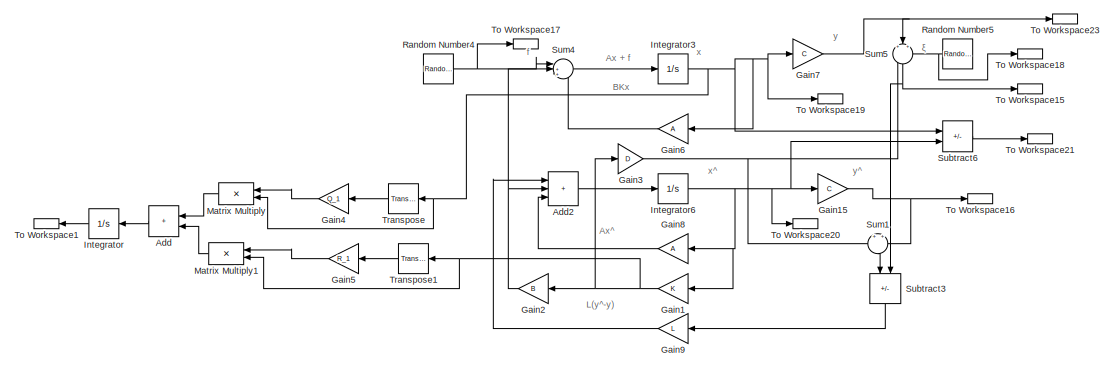
[diagram: root canvas - part 1/4, top center region]
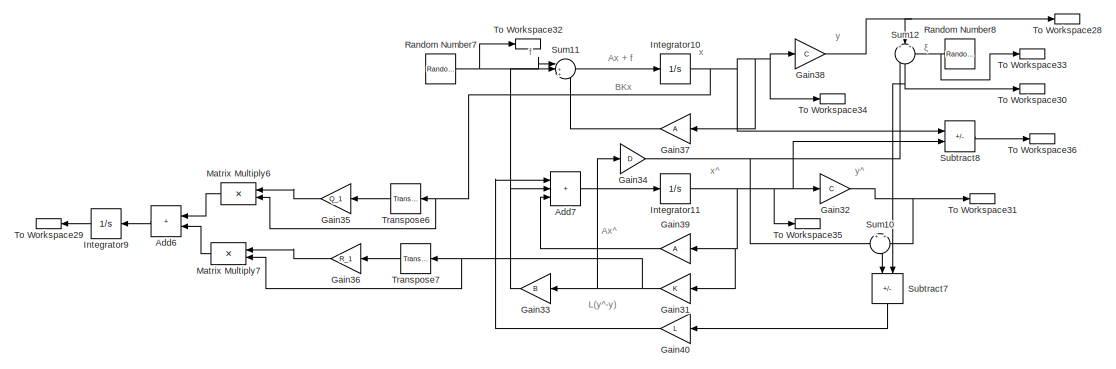
[diagram: root canvas - part 2/4, middle right region]
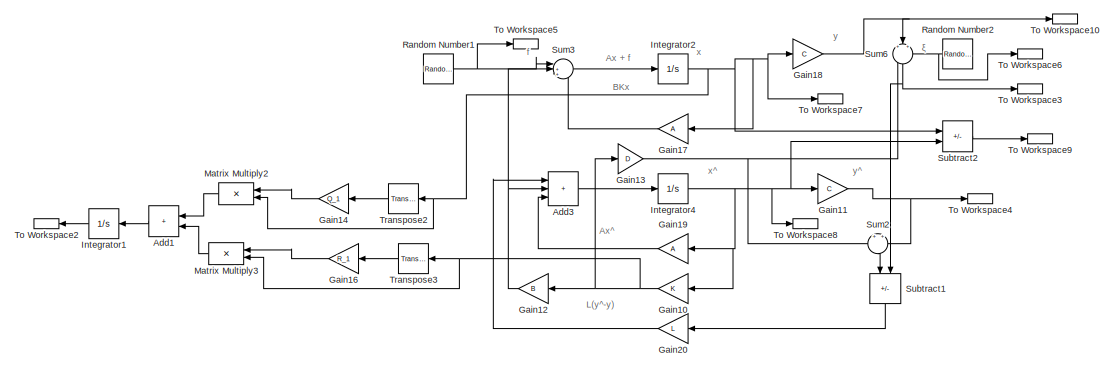
[diagram: root canvas - part 3/4, middle left region]
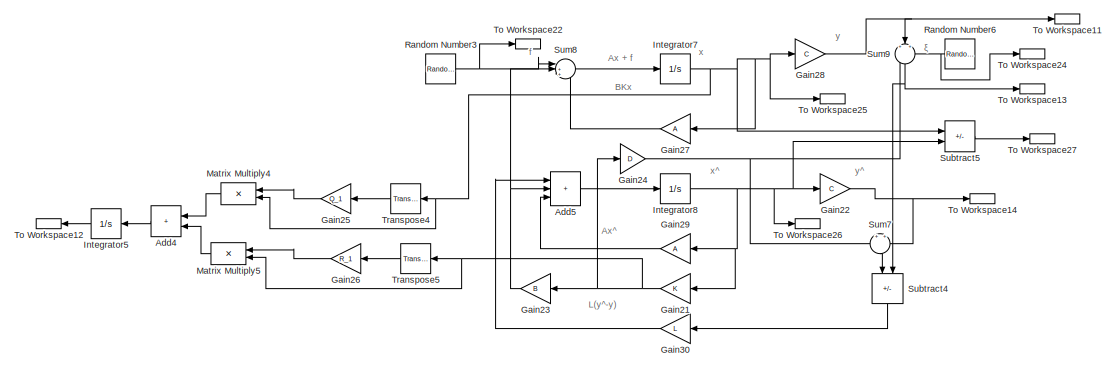
[diagram: root canvas - part 4/4, bottom right region]
MODEL slx_93a18c99cc7f
KIND model
CONFIG AbsTol = auto
CONFIG EnableMultiTasking = off
CONFIG FixedStep = auto
CONFIG MaxStep = auto
CONFIG MinStep = auto
CONFIG RelTol = 1e-3
CONFIG SampleTimeConstraint = Unconstrained
CONFIG SolverName = VariableStepAuto
CONFIG StartTime = 0.0
CONFIG StopTime = 10
BLOCK [Sum] Add
  IconShape = rectangular
  NameLocation = top
  Ports = [2, 1]
BLOCK [Sum] Add1
  IconShape = rectangular
  NameLocation = top
  Ports = [2, 1]
BLOCK [Sum] Add2
  IconShape = rectangular
  Inputs = +++
  Ports = [3, 1]
BLOCK [Sum] Add3
  IconShape = rectangular
  Inputs = +++
  Ports = [3, 1]
BLOCK [Sum] Add4
  IconShape = rectangular
  NameLocation = top
  Ports = [2, 1]
BLOCK [Sum] Add5
  IconShape = rectangular
  Inputs = +++
  Ports = [3, 1]
BLOCK [Sum] Add6
  IconShape = rectangular
  NameLocation = top
  Ports = [2, 1]
BLOCK [Sum] Add7
  IconShape = rectangular
  Inputs = +++
  Ports = [3, 1]
BLOCK [Gain] Gain1
  Gain = K
  Multiplication = Matrix(K*u) (u vector)
  NameLocation = top
BLOCK [Gain] Gain10
  Gain = K
  Multiplication = Matrix(K*u) (u vector)
  NameLocation = top
BLOCK [Gain] Gain11
  Gain = C
  Multiplication = Matrix(K*u)
BLOCK [Gain] Gain12
  Gain = B
  Multiplication = Matrix(K*u)
  NameLocation = top
BLOCK [Gain] Gain13
  Gain = D
  Multiplication = Matrix(K*u) (u vector)
BLOCK [Gain] Gain14
  Gain = Q_1
  Multiplication = Matrix(u*K)
  NameLocation = top
BLOCK [Gain] Gain15
  Gain = C
  Multiplication = Matrix(K*u)
BLOCK [Gain] Gain16
  Gain = R_1
  Multiplication = Matrix(u*K)
  NameLocation = top
BLOCK [Gain] Gain17
  Gain = A
  Multiplication = Matrix(K*u) (u vector)
  NameLocation = top
BLOCK [Gain] Gain18
  Gain = C
  Multiplication = Matrix(K*u)
BLOCK [Gain] Gain19
  Gain = A
  Multiplication = Matrix(K*u)
  NameLocation = top
BLOCK [Gain] Gain2
  Gain = B
  Multiplication = Matrix(K*u)
  NameLocation = top
BLOCK [Gain] Gain20
  Gain = L
  Multiplication = Matrix(K*u)
  NameLocation = top
BLOCK [Gain] Gain21
  Gain = K
  Multiplication = Matrix(K*u) (u vector)
  NameLocation = top
BLOCK [Gain] Gain22
  Gain = C
  Multiplication = Matrix(K*u)
BLOCK [Gain] Gain23
  Gain = B
  Multiplication = Matrix(K*u)
  NameLocation = top
BLOCK [Gain] Gain24
  Gain = D
  Multiplication = Matrix(K*u) (u vector)
BLOCK [Gain] Gain25
  Gain = Q_1
  Multiplication = Matrix(u*K)
  NameLocation = top
BLOCK [Gain] Gain26
  Gain = R_1
  Multiplication = Matrix(u*K)
  NameLocation = top
BLOCK [Gain] Gain27
  Gain = A
  Multiplication = Matrix(K*u) (u vector)
  NameLocation = top
BLOCK [Gain] Gain28
  Gain = C
  Multiplication = Matrix(K*u)
BLOCK [Gain] Gain29
  Gain = A
  Multiplication = Matrix(K*u)
  NameLocation = top
BLOCK [Gain] Gain3
  Gain = D
  Multiplication = Matrix(K*u) (u vector)
BLOCK [Gain] Gain30
  Gain = L
  Multiplication = Matrix(K*u)
  NameLocation = top
BLOCK [Gain] Gain31
  Gain = K
  Multiplication = Matrix(K*u) (u vector)
  NameLocation = top
BLOCK [Gain] Gain32
  Gain = C
  Multiplication = Matrix(K*u)
BLOCK [Gain] Gain33
  Gain = B
  Multiplication = Matrix(K*u)
  NameLocation = top
BLOCK [Gain] Gain34
  Gain = D
  Multiplication = Matrix(K*u) (u vector)
BLOCK [Gain] Gain35
  Gain = Q_1
  Multiplication = Matrix(u*K)
  NameLocation = top
BLOCK [Gain] Gain36
  Gain = R_1
  Multiplication = Matrix(u*K)
  NameLocation = top
BLOCK [Gain] Gain37
  Gain = A
  Multiplication = Matrix(K*u) (u vector)
  NameLocation = top
BLOCK [Gain] Gain38
  Gain = C
  Multiplication = Matrix(K*u)
BLOCK [Gain] Gain39
  Gain = A
  Multiplication = Matrix(K*u)
  NameLocation = top
BLOCK [Gain] Gain4
  Gain = Q_1
  Multiplication = Matrix(u*K)
  NameLocation = top
BLOCK [Gain] Gain40
  Gain = L
  Multiplication = Matrix(K*u)
  NameLocation = top
BLOCK [Gain] Gain5
  Gain = R_1
  Multiplication = Matrix(u*K)
  NameLocation = top
BLOCK [Gain] Gain6
  Gain = A
  Multiplication = Matrix(K*u) (u vector)
  NameLocation = top
BLOCK [Gain] Gain7
  Gain = C
  Multiplication = Matrix(K*u)
BLOCK [Gain] Gain8
  Gain = A
  Multiplication = Matrix(K*u)
  NameLocation = top
BLOCK [Gain] Gain9
  Gain = L
  Multiplication = Matrix(K*u)
  NameLocation = top
BLOCK [Integrator] Integrator
  NameLocation = top
  Ports = [1, 1]
BLOCK [Integrator] Integrator1
  NameLocation = top
  Ports = [1, 1]
BLOCK [Integrator] Integrator10
  InitialCondition = x0
  Ports = [1, 1]
BLOCK [Integrator] Integrator11
  InitialCondition = x_0
  Ports = [1, 1]
BLOCK [Integrator] Integrator2
  InitialCondition = x0
  Ports = [1, 1]
BLOCK [Integrator] Integrator3
  InitialCondition = x0
  Ports = [1, 1]
BLOCK [Integrator] Integrator4
  InitialCondition = x_0
  Ports = [1, 1]
BLOCK [Integrator] Integrator5
  NameLocation = top
  Ports = [1, 1]
BLOCK [Integrator] Integrator6
  InitialCondition = x_0
  Ports = [1, 1]
BLOCK [Integrator] Integrator7
  InitialCondition = x0
  Ports = [1, 1]
BLOCK [Integrator] Integrator8
  InitialCondition = x_0
  Ports = [1, 1]
BLOCK [Integrator] Integrator9
  NameLocation = top
  Ports = [1, 1]
BLOCK [Product] Matrix Multiply
  Multiplication = Matrix(*)
  NameLocation = top
  Ports = [2, 1]
BLOCK [Product] Matrix Multiply1
  Multiplication = Matrix(*)
  NameLocation = top
  Ports = [2, 1]
BLOCK [Product] Matrix Multiply2
  Multiplication = Matrix(*)
  NameLocation = top
  Ports = [2, 1]
BLOCK [Product] Matrix Multiply3
  Multiplication = Matrix(*)
  NameLocation = top
  Ports = [2, 1]
BLOCK [Product] Matrix Multiply4
  Multiplication = Matrix(*)
  NameLocation = top
  Ports = [2, 1]
BLOCK [Product] Matrix Multiply5
  Multiplication = Matrix(*)
  NameLocation = top
  Ports = [2, 1]
BLOCK [Product] Matrix Multiply6
  Multiplication = Matrix(*)
  NameLocation = top
  Ports = [2, 1]
BLOCK [Product] Matrix Multiply7
  Multiplication = Matrix(*)
  NameLocation = top
  Ports = [2, 1]
BLOCK [RandomNumber] Random Number1
  SampleTime = 0000.1
  Seed = [10; 20; 30; 40]
  Variance = 5
BLOCK [RandomNumber] Random Number2
  NameLocation = top
  SampleTime = 0000.1
  Seed = [50; 60]
  Variance = 25
BLOCK [RandomNumber] Random Number3
  SampleTime = 0000.1
  Seed = [100; 200; 300; 400]
  Variance = 5
BLOCK [RandomNumber] Random Number4
  SampleTime = 0000.1
  Seed = [1; 2; 3; 4]
  Variance = 5
BLOCK [RandomNumber] Random Number5
  NameLocation = top
  SampleTime = 0000.1
  Seed = [5; 6]
  Variance = 25
BLOCK [RandomNumber] Random Number6
  NameLocation = top
  SampleTime = 0000.1
  Seed = [150; 160]
  Variance = 25
BLOCK [RandomNumber] Random Number7
  SampleTime = 0000.1
  Seed = [1000; 2000; 3000; 4000]
  Variance = 5
BLOCK [RandomNumber] Random Number8
  NameLocation = top
  SampleTime = 0000.1
  Seed = [5000; 6000]
  Variance = 25
BLOCK [Sum] Subtract1
  IconShape = rectangular
  Inputs = +-
  NameLocation = left
  Ports = [2, 1]
BLOCK [Sum] Subtract2
  IconShape = rectangular
  Inputs = +-
  Ports = [2, 1]
BLOCK [Sum] Subtract3
  IconShape = rectangular
  Inputs = +-
  NameLocation = left
  Ports = [2, 1]
BLOCK [Sum] Subtract4
  IconShape = rectangular
  Inputs = +-
  NameLocation = left
  Ports = [2, 1]
BLOCK [Sum] Subtract5
  IconShape = rectangular
  Inputs = +-
  Ports = [2, 1]
BLOCK [Sum] Subtract6
  IconShape = rectangular
  Inputs = +-
  Ports = [2, 1]
BLOCK [Sum] Subtract7
  IconShape = rectangular
  Inputs = +-
  NameLocation = left
  Ports = [2, 1]
BLOCK [Sum] Subtract8
  IconShape = rectangular
  Inputs = +-
  Ports = [2, 1]
BLOCK [Sum] Sum1
  Inputs = +|+
  NameLocation = left
  Ports = [2, 1]
BLOCK [Sum] Sum10
  Inputs = +|+
  NameLocation = left
  Ports = [2, 1]
BLOCK [Sum] Sum11
  Inputs = |+++
  Ports = [3, 1]
BLOCK [Sum] Sum12
  Inputs = +|++
  NameLocation = left
  Ports = [3, 1]
BLOCK [Sum] Sum2
  Inputs = +|+
  NameLocation = left
  Ports = [2, 1]
BLOCK [Sum] Sum3
  Inputs = |+++
  Ports = [3, 1]
BLOCK [Sum] Sum4
  Inputs = |+++
  Ports = [3, 1]
BLOCK [Sum] Sum5
  Inputs = +|++
  NameLocation = left
  Ports = [3, 1]
BLOCK [Sum] Sum6
  Inputs = +|++
  NameLocation = left
  Ports = [3, 1]
BLOCK [Sum] Sum7
  Inputs = +|+
  NameLocation = left
  Ports = [2, 1]
BLOCK [Sum] Sum8
  Inputs = |+++
  Ports = [3, 1]
BLOCK [Sum] Sum9
  Inputs = +|++
  NameLocation = left
  Ports = [3, 1]
BLOCK [ToWorkspace] To Workspace1
  FixptAsFi = on
  MaxDataPoints = inf
  NameLocation = top
  Ports = [1]
  SampleTime = 0.0001
  SaveFormat = Timeseries
  VariableName = j_1
BLOCK [ToWorkspace] To Workspace10
  FixptAsFi = on
  MaxDataPoints = inf
  Ports = [1]
  SampleTime = -1
  SaveFormat = Timeseries
  VariableName = y_f_
BLOCK [ToWorkspace] To Workspace11
  FixptAsFi = on
  MaxDataPoints = inf
  Ports = [1]
  SampleTime = -1
  SaveFormat = Timeseries
  VariableName = y_f_1
BLOCK [ToWorkspace] To Workspace12
  FixptAsFi = on
  MaxDataPoints = inf
  NameLocation = top
  Ports = [1]
  SampleTime = 0.0001
  SaveFormat = Timeseries
  VariableName = j_3
BLOCK [ToWorkspace] To Workspace13
  FixptAsFi = on
  MaxDataPoints = inf
  Ports = [1]
  SampleTime = -1
  SaveFormat = Timeseries
  VariableName = y_1
BLOCK [ToWorkspace] To Workspace14
  FixptAsFi = on
  MaxDataPoints = inf
  Ports = [1]
  SampleTime = -1
  SaveFormat = Timeseries
  VariableName = y_3_2
BLOCK [ToWorkspace] To Workspace15
  FixptAsFi = on
  MaxDataPoints = inf
  Ports = [1]
  SampleTime = -1
  SaveFormat = Timeseries
  VariableName = y_3
BLOCK [ToWorkspace] To Workspace16
  FixptAsFi = on
  MaxDataPoints = inf
  Ports = [1]
  SampleTime = -1
  SaveFormat = Timeseries
  VariableName = y_3_
BLOCK [ToWorkspace] To Workspace17
  FixptAsFi = on
  MaxDataPoints = inf
  Ports = [1]
  SampleTime = -1
  SaveFormat = Timeseries
  VariableName = f_3
BLOCK [ToWorkspace] To Workspace18
  FixptAsFi = on
  MaxDataPoints = inf
  Ports = [1]
  SampleTime = -1
  SaveFormat = Timeseries
  VariableName = k_3
BLOCK [ToWorkspace] To Workspace19
  FixptAsFi = on
  MaxDataPoints = inf
  Ports = [1]
  SampleTime = 0.0001
  SaveFormat = Timeseries
  VariableName = x_3
BLOCK [ToWorkspace] To Workspace2
  FixptAsFi = on
  MaxDataPoints = inf
  NameLocation = top
  Ports = [1]
  SampleTime = 0.0001
  SaveFormat = Timeseries
  VariableName = j_2
BLOCK [ToWorkspace] To Workspace20
  FixptAsFi = on
  MaxDataPoints = inf
  Ports = [1]
  SampleTime = -1
  SaveFormat = Timeseries
  VariableName = x_3_
BLOCK [ToWorkspace] To Workspace21
  FixptAsFi = on
  MaxDataPoints = inf
  Ports = [1]
  SampleTime = -1
  SaveFormat = Timeseries
  VariableName = e_3
BLOCK [ToWorkspace] To Workspace22
  FixptAsFi = on
  MaxDataPoints = inf
  Ports = [1]
  SampleTime = -1
  SaveFormat = Timeseries
  VariableName = f_1
BLOCK [ToWorkspace] To Workspace23
  FixptAsFi = on
  MaxDataPoints = inf
  Ports = [1]
  SampleTime = -1
  SaveFormat = Timeseries
  VariableName = y_f_3
BLOCK [ToWorkspace] To Workspace24
  FixptAsFi = on
  MaxDataPoints = inf
  Ports = [1]
  SampleTime = -1
  SaveFormat = Timeseries
  VariableName = k_1
BLOCK [ToWorkspace] To Workspace25
  FixptAsFi = on
  MaxDataPoints = inf
  Ports = [1]
  SampleTime = 0.0001
  SaveFormat = Timeseries
  VariableName = x_1
BLOCK [ToWorkspace] To Workspace26
  FixptAsFi = on
  MaxDataPoints = inf
  Ports = [1]
  SampleTime = -1
  SaveFormat = Timeseries
  VariableName = x_3_2
BLOCK [ToWorkspace] To Workspace27
  FixptAsFi = on
  MaxDataPoints = inf
  Ports = [1]
  SampleTime = -1
  SaveFormat = Timeseries
  VariableName = e_1
BLOCK [ToWorkspace] To Workspace28
  FixptAsFi = on
  MaxDataPoints = inf
  Ports = [1]
  SampleTime = -1
  SaveFormat = Timeseries
  VariableName = y_f_2
BLOCK [ToWorkspace] To Workspace29
  FixptAsFi = on
  MaxDataPoints = inf
  NameLocation = top
  Ports = [1]
  SampleTime = 0.0001
  SaveFormat = Timeseries
  VariableName = j_4
BLOCK [ToWorkspace] To Workspace3
  FixptAsFi = on
  MaxDataPoints = inf
  Ports = [1]
  SampleTime = -1
  SaveFormat = Timeseries
  VariableName = y_
BLOCK [ToWorkspace] To Workspace30
  FixptAsFi = on
  MaxDataPoints = inf
  Ports = [1]
  SampleTime = -1
  SaveFormat = Timeseries
  VariableName = y_2
BLOCK [ToWorkspace] To Workspace31
  FixptAsFi = on
  MaxDataPoints = inf
  Ports = [1]
  SampleTime = -1
  SaveFormat = Timeseries
  VariableName = y_3_3
BLOCK [ToWorkspace] To Workspace32
  FixptAsFi = on
  MaxDataPoints = inf
  Ports = [1]
  SampleTime = -1
  SaveFormat = Timeseries
  VariableName = f_2
BLOCK [ToWorkspace] To Workspace33
  FixptAsFi = on
  MaxDataPoints = inf
  Ports = [1]
  SampleTime = -1
  SaveFormat = Timeseries
  VariableName = k_2
BLOCK [ToWorkspace] To Workspace34
  FixptAsFi = on
  MaxDataPoints = inf
  Ports = [1]
  SampleTime = 0.0001
  SaveFormat = Timeseries
  VariableName = x_2
BLOCK [ToWorkspace] To Workspace35
  FixptAsFi = on
  MaxDataPoints = inf
  Ports = [1]
  SampleTime = -1
  SaveFormat = Timeseries
  VariableName = x_3_3
BLOCK [ToWorkspace] To Workspace36
  FixptAsFi = on
  MaxDataPoints = inf
  Ports = [1]
  SampleTime = -1
  SaveFormat = Timeseries
  VariableName = e_2
BLOCK [ToWorkspace] To Workspace4
  FixptAsFi = on
  MaxDataPoints = inf
  Ports = [1]
  SampleTime = -1
  SaveFormat = Timeseries
  VariableName = y_3_1
BLOCK [ToWorkspace] To Workspace5
  FixptAsFi = on
  MaxDataPoints = inf
  Ports = [1]
  SampleTime = -1
  SaveFormat = Timeseries
  VariableName = f_
BLOCK [ToWorkspace] To Workspace6
  FixptAsFi = on
  MaxDataPoints = inf
  Ports = [1]
  SampleTime = -1
  SaveFormat = Timeseries
  VariableName = k_
BLOCK [ToWorkspace] To Workspace7
  FixptAsFi = on
  MaxDataPoints = inf
  Ports = [1]
  SampleTime = 0.0001
  SaveFormat = Timeseries
  VariableName = x_
BLOCK [ToWorkspace] To Workspace8
  FixptAsFi = on
  MaxDataPoints = inf
  Ports = [1]
  SampleTime = -1
  SaveFormat = Timeseries
  VariableName = x_3_1
BLOCK [ToWorkspace] To Workspace9
  FixptAsFi = on
  MaxDataPoints = inf
  Ports = [1]
  SampleTime = -1
  SaveFormat = Timeseries
  VariableName = e_
BLOCK [Reference] Transpose  REF=matrix_library/Transpose
  NameLocation = top
  Ports = [1, 1]
  SourceBlock = matrix_library/Transpose
  SourceProductBaseCode = SL
  SourceType = Transpose
BLOCK [Reference] Transpose1  REF=matrix_library/Transpose
  NameLocation = top
  Ports = [1, 1]
  SourceBlock = matrix_library/Transpose
  SourceProductBaseCode = SL
  SourceType = Transpose
BLOCK [Reference] Transpose2  REF=matrix_library/Transpose
  NameLocation = top
  Ports = [1, 1]
  SourceBlock = matrix_library/Transpose
  SourceProductBaseCode = SL
  SourceType = Transpose
BLOCK [Reference] Transpose3  REF=matrix_library/Transpose
  NameLocation = top
  Ports = [1, 1]
  SourceBlock = matrix_library/Transpose
  SourceProductBaseCode = SL
  SourceType = Transpose
BLOCK [Reference] Transpose4  REF=matrix_library/Transpose
  NameLocation = top
  Ports = [1, 1]
  SourceBlock = matrix_library/Transpose
  SourceProductBaseCode = SL
  SourceType = Transpose
BLOCK [Reference] Transpose5  REF=matrix_library/Transpose
  NameLocation = top
  Ports = [1, 1]
  SourceBlock = matrix_library/Transpose
  SourceProductBaseCode = SL
  SourceType = Transpose
BLOCK [Reference] Transpose6  REF=matrix_library/Transpose
  NameLocation = top
  Ports = [1, 1]
  SourceBlock = matrix_library/Transpose
  SourceProductBaseCode = SL
  SourceType = Transpose
BLOCK [Reference] Transpose7  REF=matrix_library/Transpose
  NameLocation = top
  Ports = [1, 1]
  SourceBlock = matrix_library/Transpose
  SourceProductBaseCode = SL
  SourceType = Transpose
ANNOTATION (root): Ax + f
ANNOTATION (root): Ax^
ANNOTATION (root): BKx
ANNOTATION (root): L(y^-y)
ANNOTATION (root): f
ANNOTATION (root): x
ANNOTATION (root): x^
ANNOTATION (root): y
ANNOTATION (root): y^
ANNOTATION (root): ξ
LINE Add1:1 -> Integrator1:1
LINE Add2:1 -> Integrator6:1
LINE Add3:1 -> Integrator4:1
LINE Add4:1 -> Integrator5:1
LINE Add5:1 -> Integrator8:1
LINE Add6:1 -> Integrator9:1
LINE Add7:1 -> Integrator11:1
LINE Add:1 -> Integrator:1
NET Gain10:1 -> Gain12:1, Gain13:1, Matrix Multiply3:2, Transpose3:1
NET Gain11:1 -> Sum2:2, To Workspace4:1
NET Gain12:1 -> Add3:2, Sum3:2
NET Gain13:1 -> Sum2:1, Sum6:1
LINE Gain14:1 -> Matrix Multiply2:1
NET Gain15:1 -> Sum1:2, To Workspace16:1
LINE Gain16:1 -> Matrix Multiply3:1
LINE Gain17:1 -> Sum3:3
NET Gain18:1 -> Sum6:2, To Workspace10:1
LINE Gain19:1 -> Add3:3
NET Gain1:1 -> Gain2:1, Gain3:1, Matrix Multiply1:2, Transpose1:1
LINE Gain20:1 -> Add3:1
NET Gain21:1 -> Gain23:1, Gain24:1, Matrix Multiply5:2, Transpose5:1
NET Gain22:1 -> Sum7:2, To Workspace14:1
NET Gain23:1 -> Add5:2, Sum8:2
NET Gain24:1 -> Sum7:1, Sum9:1
LINE Gain25:1 -> Matrix Multiply4:1
LINE Gain26:1 -> Matrix Multiply5:1
LINE Gain27:1 -> Sum8:3
NET Gain28:1 -> Sum9:2, To Workspace11:1
LINE Gain29:1 -> Add5:3
NET Gain2:1 -> Add2:2, Sum4:2
LINE Gain30:1 -> Add5:1
NET Gain31:1 -> Gain33:1, Gain34:1, Matrix Multiply7:2, Transpose7:1
NET Gain32:1 -> Sum10:2, To Workspace31:1
NET Gain33:1 -> Add7:2, Sum11:2
NET Gain34:1 -> Sum10:1, Sum12:1
LINE Gain35:1 -> Matrix Multiply6:1
LINE Gain36:1 -> Matrix Multiply7:1
LINE Gain37:1 -> Sum11:3
NET Gain38:1 -> Sum12:2, To Workspace28:1
LINE Gain39:1 -> Add7:3
NET Gain3:1 -> Sum1:1, Sum5:1
LINE Gain40:1 -> Add7:1
LINE Gain4:1 -> Matrix Multiply:1
LINE Gain5:1 -> Matrix Multiply1:1
LINE Gain6:1 -> Sum4:3
NET Gain7:1 -> Sum5:2, To Workspace23:1
LINE Gain8:1 -> Add2:3
LINE Gain9:1 -> Add2:1
NET Integrator10:1 -> Gain37:1, Gain38:1, Matrix Multiply6:2, Subtract8:1, To Workspace34:1, Transpose6:1
NET Integrator11:1 -> Gain31:1, Gain32:1, Gain39:1, Subtract8:2, To Workspace35:1
LINE Integrator1:1 -> To Workspace2:1
NET Integrator2:1 -> Gain17:1, Gain18:1, Matrix Multiply2:2, Subtract2:1, To Workspace7:1, Transpose2:1
NET Integrator3:1 -> Gain6:1, Gain7:1, Matrix Multiply:2, Subtract6:1, To Workspace19:1, Transpose:1
NET Integrator4:1 -> Gain10:1, Gain11:1, Gain19:1, Subtract2:2, To Workspace8:1
LINE Integrator5:1 -> To Workspace12:1
NET Integrator6:1 -> Gain15:1, Gain1:1, Gain8:1, Subtract6:2, To Workspace20:1
NET Integrator7:1 -> Gain27:1, Gain28:1, Matrix Multiply4:2, Subtract5:1, To Workspace25:1, Transpose4:1
NET Integrator8:1 -> Gain21:1, Gain22:1, Gain29:1, Subtract5:2, To Workspace26:1
LINE Integrator9:1 -> To Workspace29:1
LINE Integrator:1 -> To Workspace1:1
LINE Matrix Multiply1:1 -> Add:2
LINE Matrix Multiply2:1 -> Add1:1
LINE Matrix Multiply3:1 -> Add1:2
LINE Matrix Multiply4:1 -> Add4:1
LINE Matrix Multiply5:1 -> Add4:2
LINE Matrix Multiply6:1 -> Add6:1
LINE Matrix Multiply7:1 -> Add6:2
LINE Matrix Multiply:1 -> Add:1
NET Random Number1:1 -> Sum3:1, To Workspace5:1
NET Random Number2:1 -> Sum6:3, To Workspace6:1
NET Random Number3:1 -> Sum8:1, To Workspace22:1
NET Random Number4:1 -> Sum4:1, To Workspace17:1
NET Random Number5:1 -> Sum5:3, To Workspace18:1
NET Random Number6:1 -> Sum9:3, To Workspace24:1
NET Random Number7:1 -> Sum11:1, To Workspace32:1
NET Random Number8:1 -> Sum12:3, To Workspace33:1
LINE Subtract1:1 -> Gain20:1
LINE Subtract2:1 -> To Workspace9:1
LINE Subtract3:1 -> Gain9:1
LINE Subtract4:1 -> Gain30:1
LINE Subtract5:1 -> To Workspace27:1
LINE Subtract6:1 -> To Workspace21:1
LINE Subtract7:1 -> Gain40:1
LINE Subtract8:1 -> To Workspace36:1
LINE Sum10:1 -> Subtract7:1
LINE Sum11:1 -> Integrator10:1
NET Sum12:1 -> Subtract7:2, To Workspace30:1
LINE Sum1:1 -> Subtract3:1
LINE Sum2:1 -> Subtract1:1
LINE Sum3:1 -> Integrator2:1
LINE Sum4:1 -> Integrator3:1
NET Sum5:1 -> Subtract3:2, To Workspace15:1
NET Sum6:1 -> Subtract1:2, To Workspace3:1
LINE Sum7:1 -> Subtract4:1
LINE Sum8:1 -> Integrator7:1
NET Sum9:1 -> Subtract4:2, To Workspace13:1
LINE Transpose1:1 -> Gain5:1
LINE Transpose2:1 -> Gain14:1
LINE Transpose3:1 -> Gain16:1
LINE Transpose4:1 -> Gain25:1
LINE Transpose5:1 -> Gain26:1
LINE Transpose6:1 -> Gain35:1
LINE Transpose7:1 -> Gain36:1
LINE Transpose:1 -> Gain4:1
note: NET lines group one-source signal fan-out (src -> all destinations, sorted); 1:1 wires keep LINE
